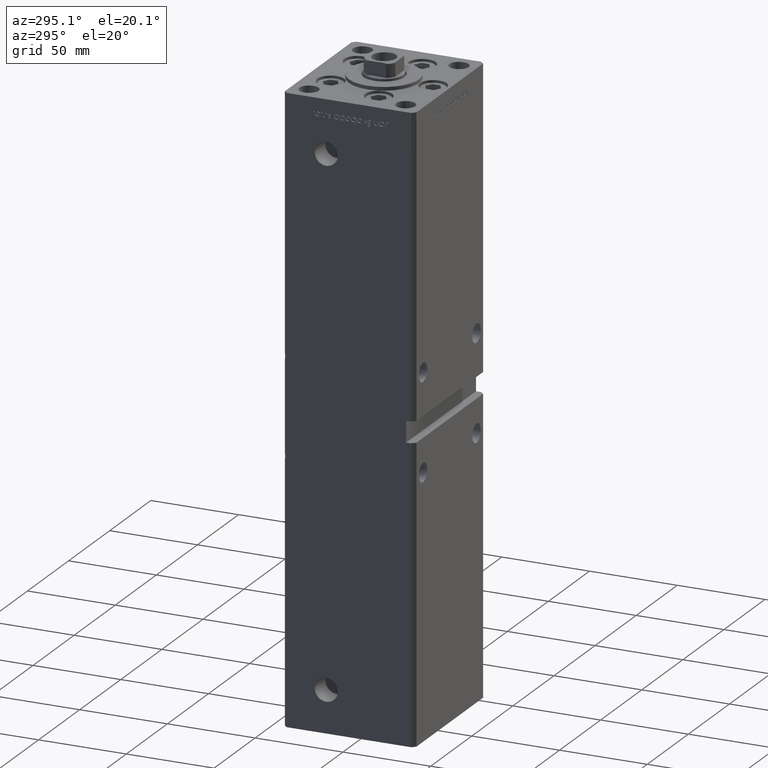
[diagram: clean part render]
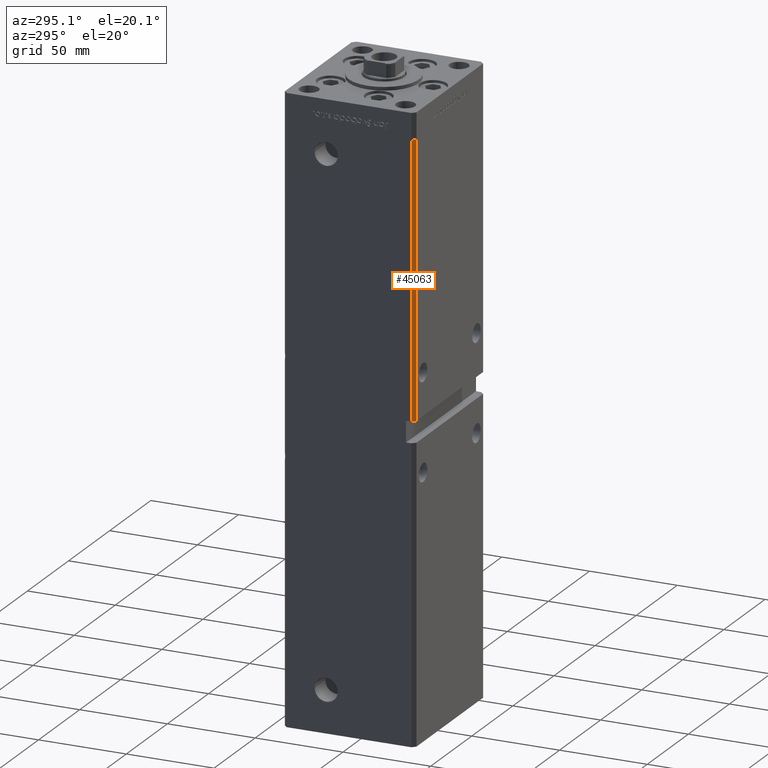
[diagram: same view with one face highlighted and labeled with its STEP entity id]
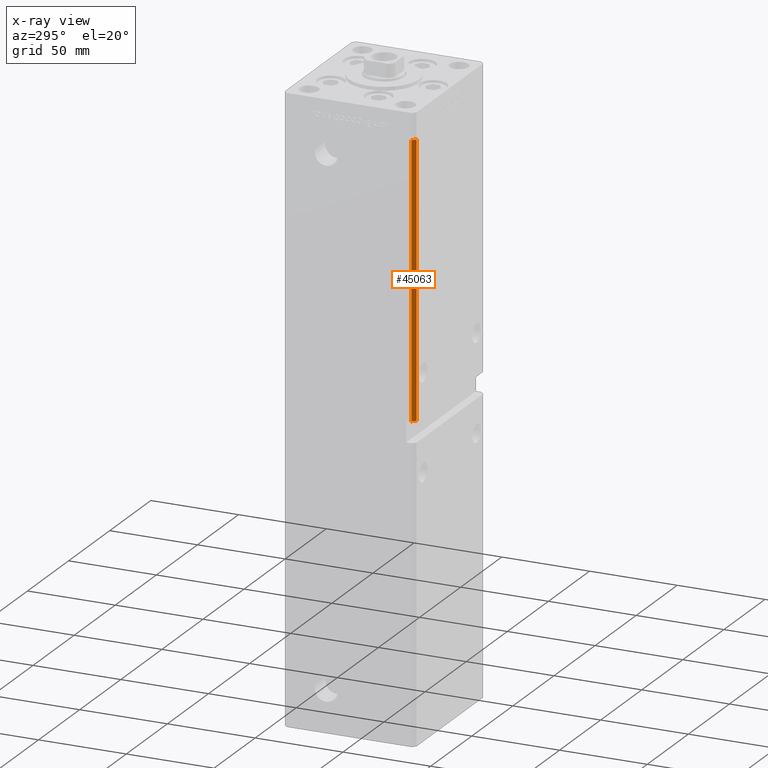
[diagram: x-ray of the same camera — body ghosted, the highlighted face saturated]
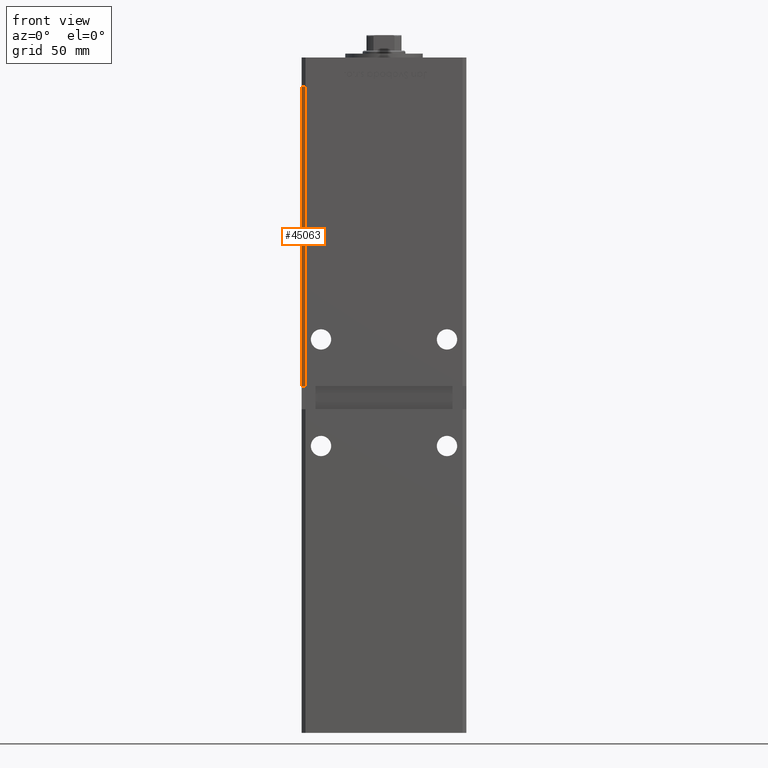
[diagram: same view with one face highlighted and labeled with its STEP entity id]
A machine part, auxiliary view. The second image highlights one B-rep face of the part: STEP entity #45063.
The next image is the same camera in x-ray: the body ghosted, the highlighted face saturated — about 0% of this face is hidden behind the body in this view.
A second angle (front view) of the same face is appended — the face is thin or edge-on in the first view.
In plain terms, the highlighted planar face has unit normal (0.7071, 0.7071, 0).
Its self-contained STEP definition (entity closure, byte-faithful):
#391 = DIRECTION ( 'NONE',  ( 0.7071067811865475727, 0.7071067811865475727, -0.000000000000000000 ) ) ;
#669 = FACE_OUTER_BOUND ( 'NONE', #2952, .T. ) ;
#672 = EDGE_CURVE ( 'NONE', #22047, #30263, #52705, .T. ) ;
#1164 = VERTEX_POINT ( 'NONE', #26244 ) ;
#1316 = AXIS2_PLACEMENT_3D ( 'NONE', #38012, #391, #8719 ) ;
#2952 = EDGE_LOOP ( 'NONE', ( #30204, #17320, #38381, #15453 ) ) ;
#2993 = DIRECTION ( 'NONE',  ( -0.000000000000000000, -0.000000000000000000, -1.000000000000000000 ) ) ;
#5054 = LINE ( 'NONE', #9079, #18542 ) ;
#5565 = DIRECTION ( 'NONE',  ( 0.7071067811865474617, -0.7071067811865474617, 0.000000000000000000 ) ) ;
#5742 = EDGE_CURVE ( 'NONE', #1164, #50871, #13538, .T. ) ;
#8719 = DIRECTION ( 'NONE',  ( -0.7071067811865474617, 0.7071067811865474617, 0.000000000000000000 ) ) ;
#9079 = CARTESIAN_POINT ( 'NONE',  ( -42.49999999999998579, -35.50000000000000711, 318.5000000000000000 ) ) ;
#12429 = CARTESIAN_POINT ( 'NONE',  ( -42.49999999999997158, -35.50000000000002132, 164.0000000000000568 ) ) ;
#13538 = LINE ( 'NONE', #14570, #22724 ) ;
#14570 = CARTESIAN_POINT ( 'NONE',  ( -40.49999999999998579, -37.50000000000000711, 318.5000000000000000 ) ) ;
#15453 = ORIENTED_EDGE ( 'NONE', *, *, #15511, .F. ) ;
#15511 = EDGE_CURVE ( 'NONE', #22047, #1164, #5054, .T. ) ;
#17151 = VECTOR ( 'NONE', #17794, 1000.000000000000114 ) ;
#17163 = CARTESIAN_POINT ( 'NONE',  ( -42.49999999999998579, -35.50000000000000711, 318.5000000000000000 ) ) ;
#17320 = ORIENTED_EDGE ( 'NONE', *, *, #30337, .T. ) ;
#17794 = DIRECTION ( 'NONE',  ( 0.7071067811865474617, -0.7071067811865474617, 0.000000000000000000 ) ) ;
#18312 = CARTESIAN_POINT ( 'NONE',  ( -42.49999999999998579, -35.50000000000000711, 164.0000000000000568 ) ) ;
#18542 = VECTOR ( 'NONE', #5565, 1000.000000000000114 ) ;
#22047 = VERTEX_POINT ( 'NONE', #17163 ) ;
#22724 = VECTOR ( 'NONE', #30986, 1000.000000000000000 ) ;
#23399 = CARTESIAN_POINT ( 'NONE',  ( -42.49999999999998579, -35.50000000000000711, 318.5000000000000000 ) ) ;
#26244 = CARTESIAN_POINT ( 'NONE',  ( -40.49999999999998579, -37.50000000000000711, 318.5000000000000000 ) ) ;
#30204 = ORIENTED_EDGE ( 'NONE', *, *, #672, .T. ) ;
#30263 = VERTEX_POINT ( 'NONE', #12429 ) ;
#30337 = EDGE_CURVE ( 'NONE', #30263, #50871, #30957, .T. ) ;
#30957 = LINE ( 'NONE', #18312, #17151 ) ;
#30986 = DIRECTION ( 'NONE',  ( -0.000000000000000000, -0.000000000000000000, -1.000000000000000000 ) ) ;
#38012 = CARTESIAN_POINT ( 'NONE',  ( -42.49999999999998579, -35.50000000000000711, 318.5000000000000000 ) ) ;
#38381 = ORIENTED_EDGE ( 'NONE', *, *, #5742, .F. ) ;
#41778 = PLANE ( 'NONE',  #1316 ) ;
#45063 = ADVANCED_FACE ( 'NONE', ( #669 ), #41778, .F. ) ;
#50083 = CARTESIAN_POINT ( 'NONE',  ( -40.49999999999998579, -37.50000000000000711, 164.0000000000000568 ) ) ;
#50871 = VERTEX_POINT ( 'NONE', #50083 ) ;
#52317 = VECTOR ( 'NONE', #2993, 1000.000000000000000 ) ;
#52705 = LINE ( 'NONE', #23399, #52317 ) ;